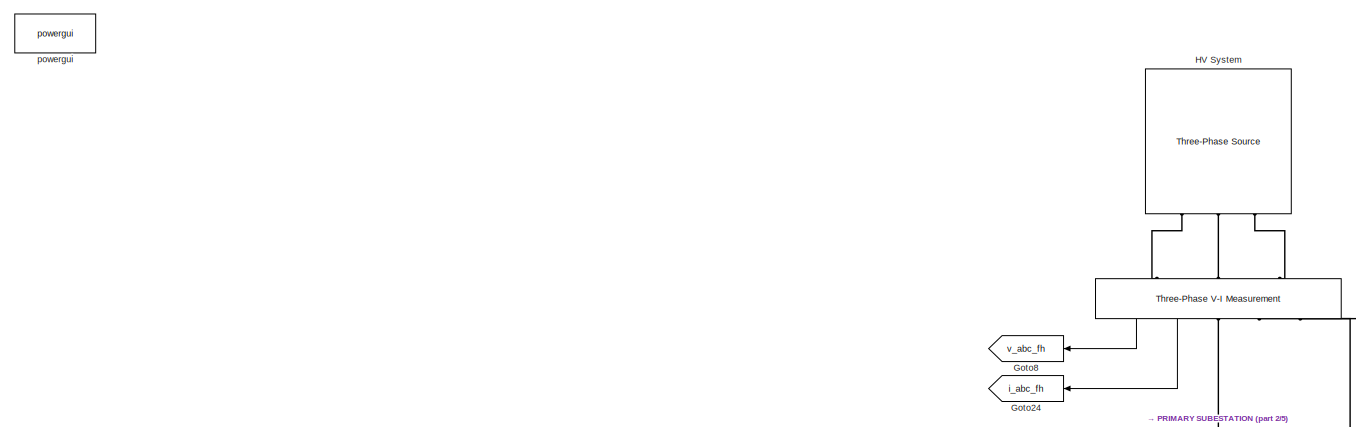
[diagram: root canvas - part 1/5, top center region]
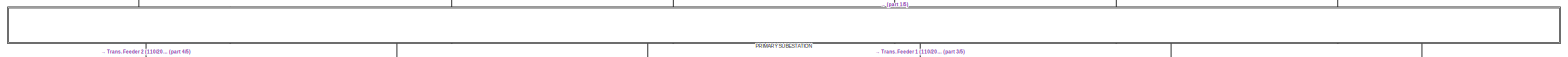
[diagram: root canvas - part 2/5, full width, middle band]
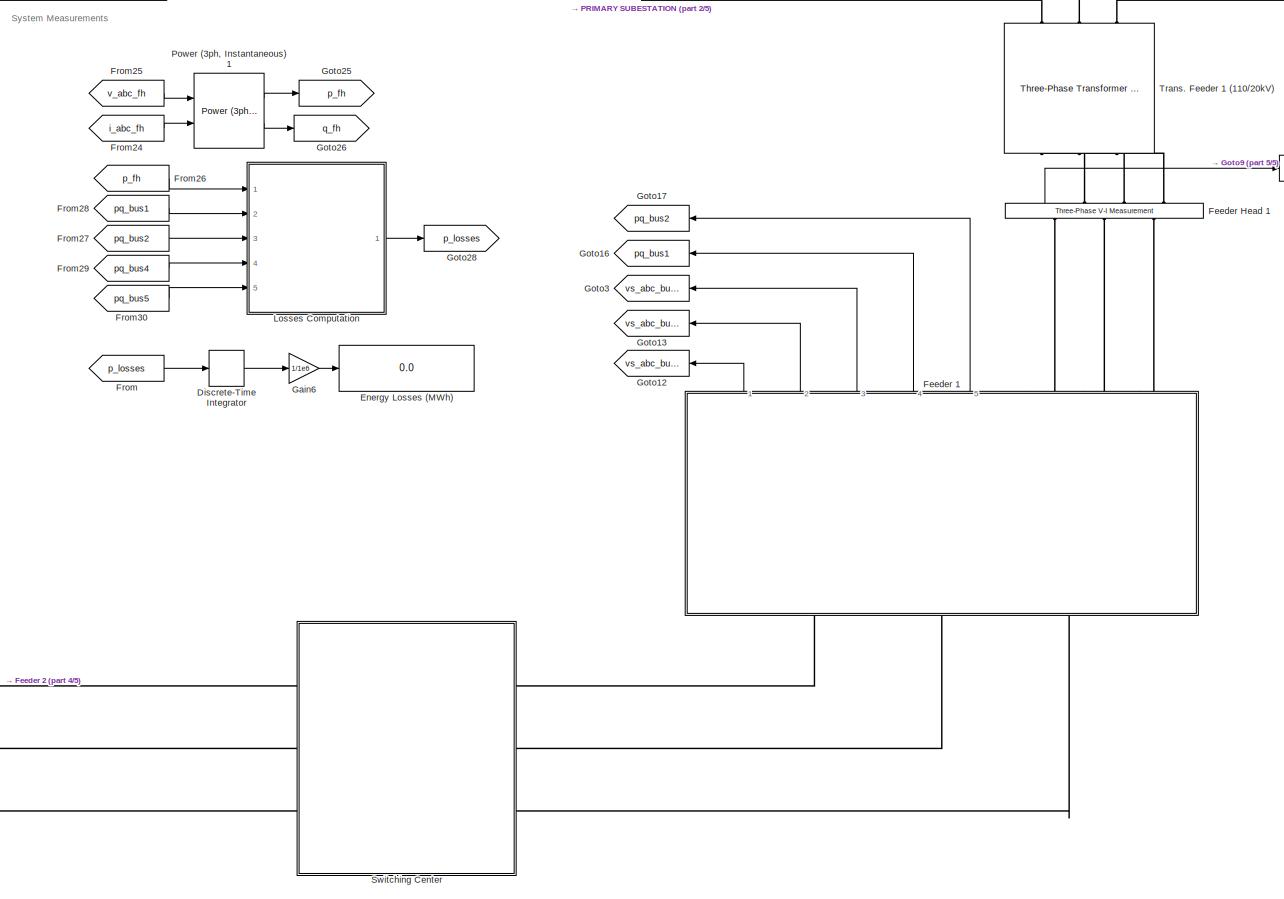
[diagram: root canvas - part 3/5, bottom center region]
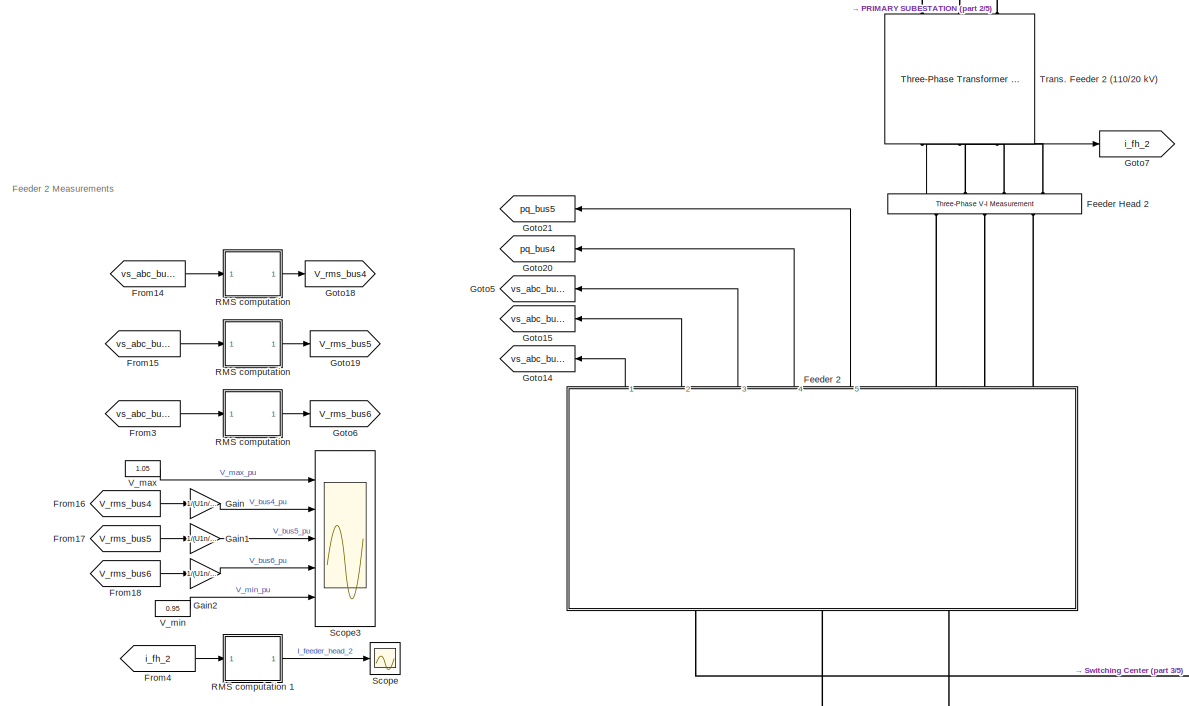
[diagram: root canvas - part 4/5, middle left region]
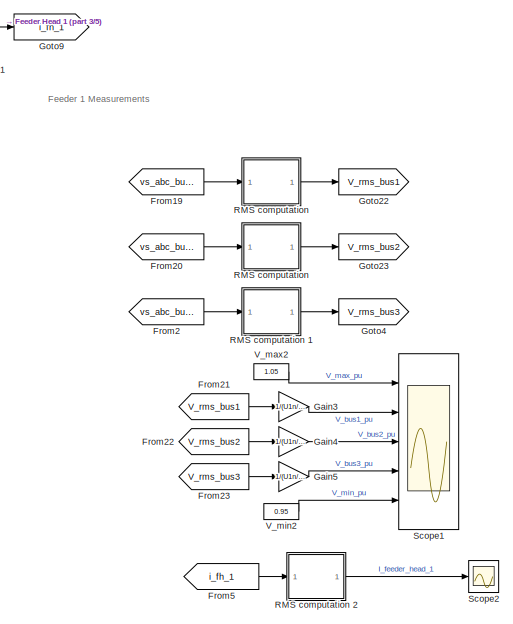
[diagram: root canvas - part 5/5, bottom right region]
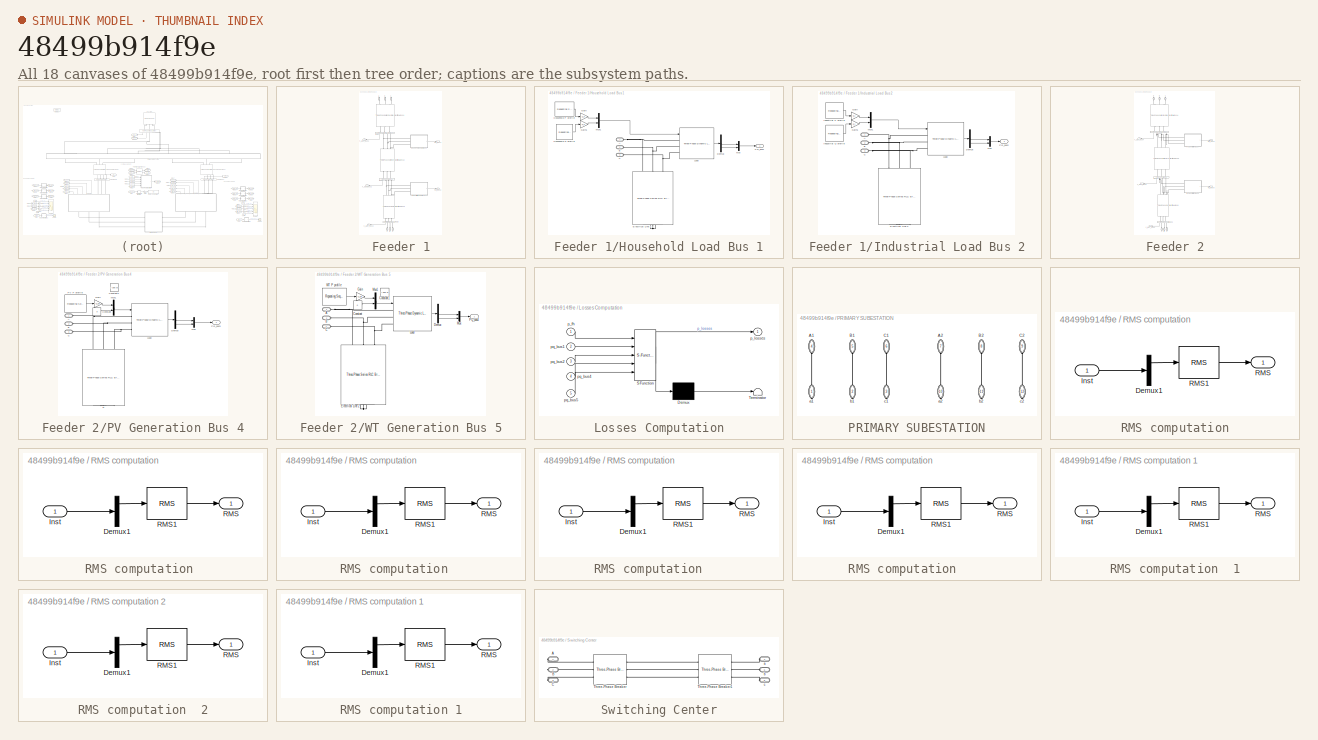
[diagram: thumbnail index - all 18 canvases of the model, root first then tree order]
MODEL slx_48499b914f9e
KIND model
CONFIG AbsTol = auto
CONFIG EnableMultiTasking = off
CONFIG FixedStep = Ts_Power
CONFIG InitFcn = %Simulation parameters\nTs_Power = 50e-6;\nTs_Control = 50e-6;\nTs_sec = 0.05;\n\n%MV Grid parameters\nU1n = 20e3;\nf = 50;\nomega = 2*pi*50;\n\n\n%LCL filter parameters\nL_t = 100e-6;\nC = 173e-6;\nL_s = 100e-6;\nR_d = 0.086;\nR_t = omega*L_t/100;\nR_s = omega*L_s/100;\n\n%Capacitance of the DC bus\nCdc = 5.88e-3;\nRdc = 0.00001;\n\n%Coupling transformers parameters\nU2n = 400;\nSn1 = 3e6;\n\n%Primary Subestation parameter...<+1463ch>
CONFIG MaxStep = auto
CONFIG MinStep = auto
CONFIG RelTol = 1e-3
CONFIG SampleTimeConstraint = Unconstrained
CONFIG SolverName = FixedStepDiscrete
CONFIG StartTime = 0.0
CONFIG StopTime = 24
BLOCK [Reference]    REF=spsThreePhaseVIMeasurementLib/Three-Phase
V-I Measurement
  NameLocation = right
  Ports = [0, 2, 0, 0, 0, 3, 3]
  SourceBlock = spsThreePhaseVIMeasurementLib/Three-Phase\nV-I Measurement
  SourceProductBaseCode = PS
  SourceType = Three-Phase VI Measurement
BLOCK [DiscreteIntegrator] Discrete-Time Integrator
  ICPrevOutput = DiscIntNeverNeededParam
  ICPrevScaledInput = DiscIntNeverNeededParam
  InitialConditionSetting = Auto
  Ports = [1, 1]
  SampleTime = Ts_Control
BLOCK [Display] Energy Losses (MWh)
  Decimation = 1
  Ports = [1]
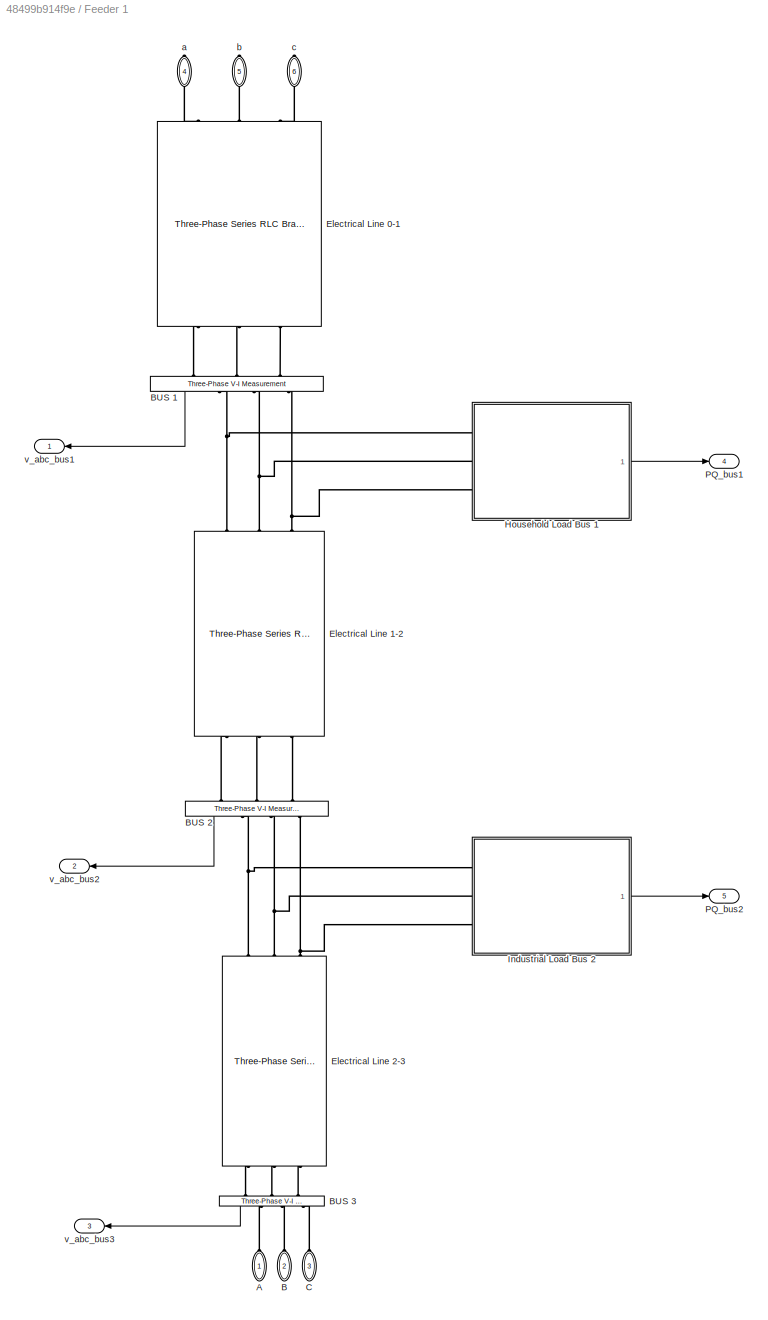
BLOCK [SubSystem] Feeder 1
  NameLocation = right
  Ports = [0, 5, 0, 0, 0, 3, 3]
  RequestExecContextInheritance = off
BLOCK [PMIOPort] Feeder 1/A
  NameLocation = right
  Side = Left
BLOCK [PMIOPort] Feeder 1/B
  NameLocation = right
  Port = 2
  Side = Left
BLOCK [Reference] Feeder 1/BUS 1  REF=spsThreePhaseVIMeasurementLib/Three-Phase
V-I Measurement
  NameLocation = right
  Ports = [0, 1, 0, 0, 0, 3, 3]
  SourceBlock = spsThreePhaseVIMeasurementLib/Three-Phase\nV-I Measurement
  SourceProductBaseCode = PS
  SourceType = Three-Phase VI Measurement
BLOCK [Reference] Feeder 1/BUS 2  REF=spsThreePhaseVIMeasurementLib/Three-Phase
V-I Measurement
  NameLocation = right
  Ports = [0, 1, 0, 0, 0, 3, 3]
  SourceBlock = spsThreePhaseVIMeasurementLib/Three-Phase\nV-I Measurement
  SourceProductBaseCode = PS
  SourceType = Three-Phase VI Measurement
BLOCK [Reference] Feeder 1/BUS 3  REF=spsThreePhaseVIMeasurementLib/Three-Phase
V-I Measurement
  NameLocation = right
  Ports = [0, 1, 0, 0, 0, 3, 3]
  SourceBlock = spsThreePhaseVIMeasurementLib/Three-Phase\nV-I Measurement
  SourceProductBaseCode = PS
  SourceType = Three-Phase VI Measurement
BLOCK [PMIOPort] Feeder 1/C
  NameLocation = right
  Port = 3
  Side = Left
BLOCK [Reference] Feeder 1/Electrical Line 0-1  REF=spsThreePhaseSeriesRLCBranchLib/Three-Phase
Series RLC Branch
  AttributesFormatString = \n
  NameLocation = right
  Ports = [0, 0, 0, 0, 0, 3, 3]
  SourceBlock = spsThreePhaseSeriesRLCBranchLib/Three-Phase\nSeries RLC Branch
  SourceProductBaseCode = PS
  SourceType = Three-Phase Series RLC Branch
BLOCK [Reference] Feeder 1/Electrical Line 1-2  REF=spsThreePhaseSeriesRLCBranchLib/Three-Phase
Series RLC Branch
  AttributesFormatString = \n
  NameLocation = right
  Ports = [0, 0, 0, 0, 0, 3, 3]
  SourceBlock = spsThreePhaseSeriesRLCBranchLib/Three-Phase\nSeries RLC Branch
  SourceProductBaseCode = PS
  SourceType = Three-Phase Series RLC Branch
BLOCK [Reference] Feeder 1/Electrical Line 2-3  REF=spsThreePhaseSeriesRLCBranchLib/Three-Phase
Series RLC Branch
  AttributesFormatString = \n
  NameLocation = right
  Ports = [0, 0, 0, 0, 0, 3, 3]
  SourceBlock = spsThreePhaseSeriesRLCBranchLib/Three-Phase\nSeries RLC Branch
  SourceProductBaseCode = PS
  SourceType = Three-Phase Series RLC Branch
BLOCK [SubSystem] Feeder 1/Household Load Bus 1
  Ports = [0, 1, 0, 0, 0, 3]
  RequestExecContextInheritance = off
BLOCK [PMIOPort] Feeder 1/Household Load Bus 1/A
  Side = Left
BLOCK [PMIOPort] Feeder 1/Household Load Bus 1/B
  Port = 2
  Side = Left
BLOCK [PMIOPort] Feeder 1/Household Load Bus 1/C
  Port = 3
  Side = Left
BLOCK [Demux] Feeder 1/Household Load Bus 1/Demux
  Outputs = 3
  Ports = [1, 3]
BLOCK [Reference] Feeder 1/Household Load Bus 1/Electrical Line 2  REF=spsThreePhaseSeriesRLCBranchLib/Three-Phase
Series RLC Branch
  AttributesFormatString = \n
  NameLocation = left
  Ports = [0, 0, 0, 0, 0, 3, 3]
  SourceBlock = spsThreePhaseSeriesRLCBranchLib/Three-Phase\nSeries RLC Branch
  SourceProductBaseCode = PS
  SourceType = Three-Phase Series RLC Branch
BLOCK [Gain] Feeder 1/Household Load Bus 1/Gain
  Gain = S_h
BLOCK [Gain] Feeder 1/Household Load Bus 1/Gain1
  Gain = S_h
BLOCK [Reference] Feeder 1/Household Load Bus 1/Household P profile  REF=simulink/Sources/Repeating
Sequence
Interpolated
  NameLocation = left
  Ports = [0, 1]
  SourceBlock = simulink/Sources/Repeating\nSequence\nInterpolated
  SourceProductBaseCode = SL
  SourceType = Repeating Sequence Interpolated
BLOCK [Reference] Feeder 1/Household Load Bus 1/Household Q profile  REF=simulink/Sources/Repeating
Sequence
Interpolated
  NameLocation = left
  Ports = [0, 1]
  SourceBlock = simulink/Sources/Repeating\nSequence\nInterpolated
  SourceProductBaseCode = SL
  SourceType = Repeating Sequence Interpolated
BLOCK [Reference] Feeder 1/Household Load Bus 1/Load  REF=spsThreePhaseDynamicLoadLib/Three-Phase
Dynamic Load
  Ports = [1, 1, 0, 0, 0, 3]
  SourceBlock = spsThreePhaseDynamicLoadLib/Three-Phase\nDynamic Load
  SourceProductBaseCode = PS
  SourceType = Three-Phase Dynamic Load
BLOCK [Mux] Feeder 1/Household Load Bus 1/Mux
  DisplayOption = bar
  Inputs = 2
  Ports = [2, 1]
BLOCK [Mux] Feeder 1/Household Load Bus 1/Mux1
  DisplayOption = bar
  Inputs = 2
  Ports = [2, 1]
BLOCK [Outport] Feeder 1/Household Load Bus 1/PQ_bus1
BLOCK [SubSystem] Feeder 1/Industrial Load Bus 2
  Ports = [0, 1, 0, 0, 0, 3]
  RequestExecContextInheritance = off
BLOCK [PMIOPort] Feeder 1/Industrial Load Bus 2/A
  Side = Left
BLOCK [PMIOPort] Feeder 1/Industrial Load Bus 2/B
  Port = 2
  Side = Left
BLOCK [PMIOPort] Feeder 1/Industrial Load Bus 2/C
  Port = 3
  Side = Left
BLOCK [Demux] Feeder 1/Industrial Load Bus 2/Demux
  Outputs = 3
  Ports = [1, 3]
BLOCK [Reference] Feeder 1/Industrial Load Bus 2/Electrical Line 2  REF=spsThreePhaseSeriesRLCBranchLib/Three-Phase
Series RLC Branch
  AttributesFormatString = \n
  NameLocation = left
  Ports = [0, 0, 0, 0, 0, 3, 3]
  SourceBlock = spsThreePhaseSeriesRLCBranchLib/Three-Phase\nSeries RLC Branch
  SourceProductBaseCode = PS
  SourceType = Three-Phase Series RLC Branch
BLOCK [Gain] Feeder 1/Industrial Load Bus 2/Gain
  Gain = S_i
BLOCK [Gain] Feeder 1/Industrial Load Bus 2/Gain1
  Gain = S_i
BLOCK [Reference] Feeder 1/Industrial Load Bus 2/Industrial P profile  REF=simulink/Sources/Repeating
Sequence
Interpolated
  NameLocation = left
  Ports = [0, 1]
  SourceBlock = simulink/Sources/Repeating\nSequence\nInterpolated
  SourceProductBaseCode = SL
  SourceType = Repeating Sequence Interpolated
BLOCK [Reference] Feeder 1/Industrial Load Bus 2/Industrial Q profile  REF=simulink/Sources/Repeating
Sequence
Interpolated
  NameLocation = left
  Ports = [0, 1]
  SourceBlock = simulink/Sources/Repeating\nSequence\nInterpolated
  SourceProductBaseCode = SL
  SourceType = Repeating Sequence Interpolated
BLOCK [Reference] Feeder 1/Industrial Load Bus 2/Load  REF=spsThreePhaseDynamicLoadLib/Three-Phase
Dynamic Load
  Ports = [1, 1, 0, 0, 0, 3]
  SourceBlock = spsThreePhaseDynamicLoadLib/Three-Phase\nDynamic Load
  SourceProductBaseCode = PS
  SourceType = Three-Phase Dynamic Load
BLOCK [Mux] Feeder 1/Industrial Load Bus 2/Mux
  DisplayOption = bar
  Inputs = 2
  Ports = [2, 1]
BLOCK [Mux] Feeder 1/Industrial Load Bus 2/Mux1
  DisplayOption = bar
  Inputs = 2
  Ports = [2, 1]
BLOCK [Outport] Feeder 1/Industrial Load Bus 2/PQ_bus2
BLOCK [Outport] Feeder 1/PQ_bus1
  Port = 4
BLOCK [Outport] Feeder 1/PQ_bus2
  Port = 5
BLOCK [PMIOPort] Feeder 1/a
  NameLocation = right
  Port = 4
  Side = Right
BLOCK [PMIOPort] Feeder 1/b
  NameLocation = right
  Port = 5
  Side = Right
BLOCK [PMIOPort] Feeder 1/c
  NameLocation = right
  Port = 6
  Side = Right
BLOCK [Outport] Feeder 1/v_abc_bus1
BLOCK [Outport] Feeder 1/v_abc_bus2
  Port = 2
BLOCK [Outport] Feeder 1/v_abc_bus3
  Port = 3
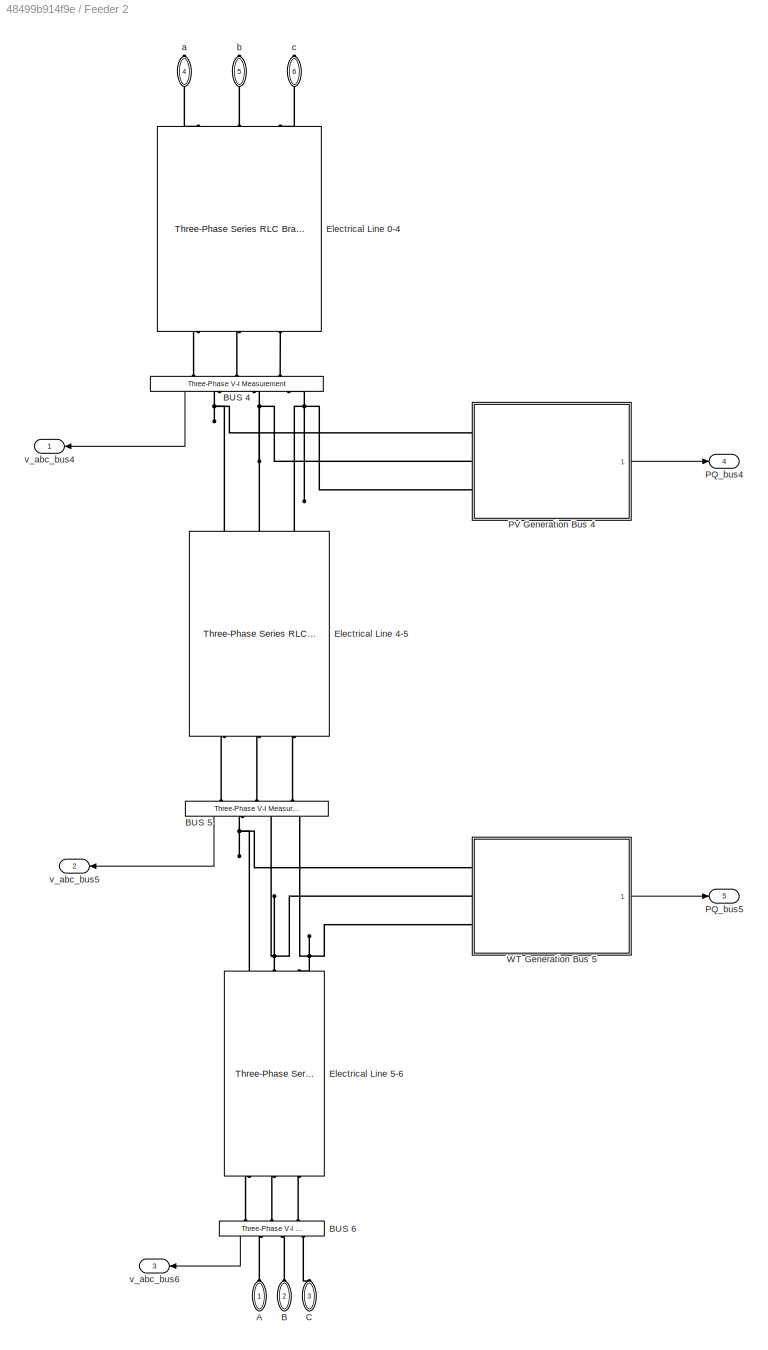
BLOCK [SubSystem] Feeder 2
  NameLocation = right
  Ports = [0, 5, 0, 0, 0, 3, 3]
  RequestExecContextInheritance = off
BLOCK [PMIOPort] Feeder 2/A
  NameLocation = right
  Side = Left
BLOCK [PMIOPort] Feeder 2/B
  NameLocation = right
  Port = 2
  Side = Left
BLOCK [Reference] Feeder 2/BUS 4  REF=spsThreePhaseVIMeasurementLib/Three-Phase
V-I Measurement
  NameLocation = right
  Ports = [0, 1, 0, 0, 0, 3, 3]
  SourceBlock = spsThreePhaseVIMeasurementLib/Three-Phase\nV-I Measurement
  SourceProductBaseCode = PS
  SourceType = Three-Phase VI Measurement
BLOCK [Reference] Feeder 2/BUS 5  REF=spsThreePhaseVIMeasurementLib/Three-Phase
V-I Measurement
  NameLocation = right
  Ports = [0, 1, 0, 0, 0, 3, 3]
  SourceBlock = spsThreePhaseVIMeasurementLib/Three-Phase\nV-I Measurement
  SourceProductBaseCode = PS
  SourceType = Three-Phase VI Measurement
BLOCK [Reference] Feeder 2/BUS 6  REF=spsThreePhaseVIMeasurementLib/Three-Phase
V-I Measurement
  NameLocation = right
  Ports = [0, 1, 0, 0, 0, 3, 3]
  SourceBlock = spsThreePhaseVIMeasurementLib/Three-Phase\nV-I Measurement
  SourceProductBaseCode = PS
  SourceType = Three-Phase VI Measurement
BLOCK [PMIOPort] Feeder 2/C
  NameLocation = right
  Port = 3
  Side = Left
BLOCK [Reference] Feeder 2/Electrical Line 0-4  REF=spsThreePhaseSeriesRLCBranchLib/Three-Phase
Series RLC Branch
  AttributesFormatString = \n
  NameLocation = right
  Ports = [0, 0, 0, 0, 0, 3, 3]
  SourceBlock = spsThreePhaseSeriesRLCBranchLib/Three-Phase\nSeries RLC Branch
  SourceProductBaseCode = PS
  SourceType = Three-Phase Series RLC Branch
BLOCK [Reference] Feeder 2/Electrical Line 4-5  REF=spsThreePhaseSeriesRLCBranchLib/Three-Phase
Series RLC Branch
  AttributesFormatString = \n
  NameLocation = right
  Ports = [0, 0, 0, 0, 0, 3, 3]
  SourceBlock = spsThreePhaseSeriesRLCBranchLib/Three-Phase\nSeries RLC Branch
  SourceProductBaseCode = PS
  SourceType = Three-Phase Series RLC Branch
BLOCK [Reference] Feeder 2/Electrical Line 5-6  REF=spsThreePhaseSeriesRLCBranchLib/Three-Phase
Series RLC Branch
  AttributesFormatString = \n
  NameLocation = right
  Ports = [0, 0, 0, 0, 0, 3, 3]
  SourceBlock = spsThreePhaseSeriesRLCBranchLib/Three-Phase\nSeries RLC Branch
  SourceProductBaseCode = PS
  SourceType = Three-Phase Series RLC Branch
BLOCK [Outport] Feeder 2/PQ_bus4
  Port = 4
BLOCK [Outport] Feeder 2/PQ_bus5
  Port = 5
BLOCK [SubSystem] Feeder 2/PV Generation Bus 4
  Ports = [0, 1, 0, 0, 0, 3]
  RequestExecContextInheritance = off
BLOCK [PMIOPort] Feeder 2/PV Generation Bus 4/A
  Side = Left
BLOCK [PMIOPort] Feeder 2/PV Generation Bus 4/B
  Port = 2
  Side = Left
BLOCK [PMIOPort] Feeder 2/PV Generation Bus 4/C
  Port = 3
  Side = Left
BLOCK [Constant] Feeder 2/PV Generation Bus 4/Constant
  Value = 0
BLOCK [Constant] Feeder 2/PV Generation Bus 4/Constant1
  Value = [-3e6 0]
BLOCK [Demux] Feeder 2/PV Generation Bus 4/Demux
  Outputs = 3
  Ports = [1, 3]
BLOCK [Gain] Feeder 2/PV Generation Bus 4/Gain
  Gain = -S_pv
BLOCK [Reference] Feeder 2/PV Generation Bus 4/Load  REF=spsThreePhaseDynamicLoadLib/Three-Phase
Dynamic Load
  Ports = [1, 1, 0, 0, 0, 3]
  SourceBlock = spsThreePhaseDynamicLoadLib/Three-Phase\nDynamic Load
  SourceProductBaseCode = PS
  SourceType = Three-Phase Dynamic Load
BLOCK [Mux] Feeder 2/PV Generation Bus 4/Mux
  DisplayOption = bar
  Inputs = 2
  Ports = [2, 1]
BLOCK [Mux] Feeder 2/PV Generation Bus 4/Mux1
  DisplayOption = bar
  Inputs = 2
  Ports = [2, 1]
BLOCK [Outport] Feeder 2/PV Generation Bus 4/PQ_bus3
BLOCK [Reference] Feeder 2/PV Generation Bus 4/PV P profile  REF=simulink/Sources/Repeating
Sequence
Interpolated
  NameLocation = left
  Ports = [0, 1]
  SourceBlock = simulink/Sources/Repeating\nSequence\nInterpolated
  SourceProductBaseCode = SL
  SourceType = Repeating Sequence Interpolated
BLOCK [Reference] Feeder 2/PV Generation Bus 4/R  REF=spsThreePhaseSeriesRLCBranchLib/Three-Phase
Series RLC Branch
  AttributesFormatString = \n
  NameLocation = left
  Ports = [0, 0, 0, 0, 0, 3, 3]
  SourceBlock = spsThreePhaseSeriesRLCBranchLib/Three-Phase\nSeries RLC Branch
  SourceProductBaseCode = PS
  SourceType = Three-Phase Series RLC Branch
BLOCK [SubSystem] Feeder 2/WT Generation Bus 5
  Ports = [0, 1, 0, 0, 0, 3]
  RequestExecContextInheritance = off
BLOCK [PMIOPort] Feeder 2/WT Generation Bus 5/A
  Side = Left
BLOCK [PMIOPort] Feeder 2/WT Generation Bus 5/B
  Port = 2
  Side = Left
BLOCK [PMIOPort] Feeder 2/WT Generation Bus 5/C
  Port = 3
  Side = Left
BLOCK [Constant] Feeder 2/WT Generation Bus 5/Constant
  Value = 0
BLOCK [Constant] Feeder 2/WT Generation Bus 5/Constant1
  Value = [-3e6 0]
BLOCK [Demux] Feeder 2/WT Generation Bus 5/Demux
  Outputs = 3
  Ports = [1, 3]
BLOCK [Reference] Feeder 2/WT Generation Bus 5/Electrical Line 2  REF=spsThreePhaseSeriesRLCBranchLib/Three-Phase
Series RLC Branch
  AttributesFormatString = \n
  NameLocation = left
  Ports = [0, 0, 0, 0, 0, 3, 3]
  SourceBlock = spsThreePhaseSeriesRLCBranchLib/Three-Phase\nSeries RLC Branch
  SourceProductBaseCode = PS
  SourceType = Three-Phase Series RLC Branch
BLOCK [Gain] Feeder 2/WT Generation Bus 5/Gain
  Gain = -S_wt
BLOCK [Reference] Feeder 2/WT Generation Bus 5/Load  REF=spsThreePhaseDynamicLoadLib/Three-Phase
Dynamic Load
  Ports = [1, 1, 0, 0, 0, 3]
  SourceBlock = spsThreePhaseDynamicLoadLib/Three-Phase\nDynamic Load
  SourceProductBaseCode = PS
  SourceType = Three-Phase Dynamic Load
BLOCK [Mux] Feeder 2/WT Generation Bus 5/Mux
  DisplayOption = bar
  Inputs = 2
  Ports = [2, 1]
BLOCK [Mux] Feeder 2/WT Generation Bus 5/Mux1
  DisplayOption = bar
  Inputs = 2
  Ports = [2, 1]
BLOCK [Outport] Feeder 2/WT Generation Bus 5/PQ_bus4
BLOCK [Reference] Feeder 2/WT Generation Bus 5/WT P profile  REF=simulink/Sources/Repeating
Sequence
Interpolated
  NameLocation = left
  Ports = [0, 1]
  SourceBlock = simulink/Sources/Repeating\nSequence\nInterpolated
  SourceProductBaseCode = SL
  SourceType = Repeating Sequence Interpolated
BLOCK [PMIOPort] Feeder 2/a
  NameLocation = right
  Port = 4
  Side = Right
BLOCK [PMIOPort] Feeder 2/b
  NameLocation = right
  Port = 5
  Side = Right
BLOCK [PMIOPort] Feeder 2/c
  NameLocation = right
  Port = 6
  Side = Right
BLOCK [Outport] Feeder 2/v_abc_bus4
BLOCK [Outport] Feeder 2/v_abc_bus5
  Port = 2
BLOCK [Outport] Feeder 2/v_abc_bus6
  Port = 3
BLOCK [Reference] Feeder Head 1  REF=spsThreePhaseVIMeasurementLib/Three-Phase
V-I Measurement
  NameLocation = right
  Ports = [0, 1, 0, 0, 0, 3, 3]
  SourceBlock = spsThreePhaseVIMeasurementLib/Three-Phase\nV-I Measurement
  SourceProductBaseCode = PS
  SourceType = Three-Phase VI Measurement
BLOCK [Reference] Feeder Head 2  REF=spsThreePhaseVIMeasurementLib/Three-Phase
V-I Measurement
  NameLocation = right
  Ports = [0, 1, 0, 0, 0, 3, 3]
  SourceBlock = spsThreePhaseVIMeasurementLib/Three-Phase\nV-I Measurement
  SourceProductBaseCode = PS
  SourceType = Three-Phase VI Measurement
BLOCK [From] From
  GotoTag = p_losses
BLOCK [From] From14
  GotoTag = vs_abc_bus4
BLOCK [From] From15
  GotoTag = vs_abc_bus5
BLOCK [From] From16
  GotoTag = V_rms_bus4
BLOCK [From] From17
  GotoTag = V_rms_bus5
BLOCK [From] From18
  GotoTag = V_rms_bus6
BLOCK [From] From19
  GotoTag = vs_abc_bus1
BLOCK [From] From2
  GotoTag = vs_abc_bus3
BLOCK [From] From20
  GotoTag = vs_abc_bus2
BLOCK [From] From21
  GotoTag = V_rms_bus1
BLOCK [From] From22
  GotoTag = V_rms_bus2
BLOCK [From] From23
  GotoTag = V_rms_bus3
BLOCK [From] From24
  GotoTag = i_abc_fh
BLOCK [From] From25
  GotoTag = v_abc_fh
BLOCK [From] From26
  GotoTag = p_fh
BLOCK [From] From27
  GotoTag = pq_bus2
BLOCK [From] From28
  GotoTag = pq_bus1
BLOCK [From] From29
  GotoTag = pq_bus4
BLOCK [From] From3
  GotoTag = vs_abc_bus6
BLOCK [From] From30
  GotoTag = pq_bus5
BLOCK [From] From4
  GotoTag = i_fh_2
BLOCK [From] From5
  GotoTag = i_fh_1
BLOCK [Gain] Gain
  Gain = 1/(U1n/sqrt(3))
BLOCK [Gain] Gain1
  Gain = 1/(U1n/sqrt(3))
BLOCK [Gain] Gain2
  Gain = 1/(U1n/sqrt(3))
BLOCK [Gain] Gain3
  Gain = 1/(U1n/sqrt(3))
BLOCK [Gain] Gain4
  Gain = 1/(U1n/sqrt(3))
BLOCK [Gain] Gain5
  Gain = 1/(U1n/sqrt(3))
BLOCK [Gain] Gain6
  Gain = 1/1e6
BLOCK [Goto] Goto12
  GotoTag = vs_abc_bus1
BLOCK [Goto] Goto13
  GotoTag = vs_abc_bus2
BLOCK [Goto] Goto14
  GotoTag = vs_abc_bus4
BLOCK [Goto] Goto15
  GotoTag = vs_abc_bus5
BLOCK [Goto] Goto16
  GotoTag = pq_bus1
BLOCK [Goto] Goto17
  GotoTag = pq_bus2
BLOCK [Goto] Goto18
  GotoTag = V_rms_bus4
BLOCK [Goto] Goto19
  GotoTag = V_rms_bus5
BLOCK [Goto] Goto20
  GotoTag = pq_bus4
BLOCK [Goto] Goto21
  GotoTag = pq_bus5
BLOCK [Goto] Goto22
  GotoTag = V_rms_bus1
BLOCK [Goto] Goto23
  GotoTag = V_rms_bus2
BLOCK [Goto] Goto24
  GotoTag = i_abc_fh
BLOCK [Goto] Goto25
  GotoTag = p_fh
BLOCK [Goto] Goto26
  GotoTag = q_fh
BLOCK [Goto] Goto28
  GotoTag = p_losses
BLOCK [Goto] Goto3
  GotoTag = vs_abc_bus3
BLOCK [Goto] Goto4
  GotoTag = V_rms_bus3
BLOCK [Goto] Goto5
  GotoTag = vs_abc_bus6
BLOCK [Goto] Goto6
  GotoTag = V_rms_bus6
BLOCK [Goto] Goto7
  GotoTag = i_fh_2
BLOCK [Goto] Goto8
  GotoTag = v_abc_fh
BLOCK [Goto] Goto9
  GotoTag = i_fh_1
BLOCK [Reference] HV System  REF=spsThreePhaseSourceLib/Three-Phase Source
  NameLocation = right
  Ports = [0, 0, 0, 0, 0, 0, 3]
  SourceBlock = spsThreePhaseSourceLib/Three-Phase Source
  SourceProductBaseCode = PS
  SourceType = Three-Phase Source
BLOCK [SubSystem] Losses Computation
  ErrorFcn = Stateflow.Translate.translate
  PermitHierarchicalResolution = ExplicitOnly
  Ports = [5, 1]
  RequestExecContextInheritance = off
  SFBlockType = MATLAB Function
  TreatAsAtomicUnit = on
BLOCK [Demux] Losses Computation/ Demux 
  Outputs = 1
  Ports = [1, 1]
BLOCK [S-Function] Losses Computation/ SFunction 
  EnableBusSupport = on
  FunctionName = sf_sfun
  PortCounts = [5 2]
  Ports = [5, 2]
  SFcnIsStateOwnerBlock = off
  SFunctionDeploymentMode = off
  Tag = Stateflow S-Function 16
BLOCK [Terminator] Losses Computation/ Terminator 
BLOCK [Inport] Losses Computation/p_fh
BLOCK [Outport] Losses Computation/p_losses
BLOCK [Inport] Losses Computation/pq_bus1
  Port = 2
BLOCK [Inport] Losses Computation/pq_bus2
  Port = 3
BLOCK [Inport] Losses Computation/pq_bus4
  Port = 4
BLOCK [Inport] Losses Computation/pq_bus5
  Port = 5
BLOCK [SubSystem] PRIMARY SUBESTATION
  NameLocation = top
  Ports = [0, 0, 0, 0, 0, 6, 6]
  RequestExecContextInheritance = off
BLOCK [PMIOPort] PRIMARY SUBESTATION/A1
  NameLocation = left
  Port = 4
  Side = Left
BLOCK [PMIOPort] PRIMARY SUBESTATION/A2
  NameLocation = left
  Port = 7
  Side = Left
BLOCK [PMIOPort] PRIMARY SUBESTATION/B1
  NameLocation = left
  Port = 5
  Side = Left
BLOCK [PMIOPort] PRIMARY SUBESTATION/B2
  NameLocation = left
  Port = 8
  Side = Left
BLOCK [PMIOPort] PRIMARY SUBESTATION/C1
  NameLocation = left
  Port = 6
  Side = Left
BLOCK [PMIOPort] PRIMARY SUBESTATION/C2
  NameLocation = left
  Port = 9
  Side = Left
BLOCK [PMIOPort] PRIMARY SUBESTATION/a1
  NameLocation = left
  Side = Right
BLOCK [PMIOPort] PRIMARY SUBESTATION/a2
  NameLocation = left
  Port = 10
  Side = Right
BLOCK [PMIOPort] PRIMARY SUBESTATION/b1
  NameLocation = left
  Port = 2
  Side = Right
BLOCK [PMIOPort] PRIMARY SUBESTATION/b2
  NameLocation = left
  Port = 11
  Side = Right
BLOCK [PMIOPort] PRIMARY SUBESTATION/c1
  NameLocation = left
  Port = 3
  Side = Right
BLOCK [PMIOPort] PRIMARY SUBESTATION/c2
  NameLocation = left
  Port = 12
  Side = Right
BLOCK [Reference] Power (3ph, Instantaneous)1  REF=spsPower3phInstantaneousLib/Power
(3ph, Instantaneous)
  Ports = [2, 2]
  SourceBlock = spsPower3phInstantaneousLib/Power\n(3ph, Instantaneous)
  SourceProductBaseCode = PS
  SourceType = Power (3ph, Instantaneous)
BLOCK [SubSystem] RMS computation
  Ports = [1, 1]
  RequestExecContextInheritance = off
BLOCK [SubSystem] RMS computation 
  Ports = [1, 1]
  RequestExecContextInheritance = off
BLOCK [SubSystem] RMS computation  
  Ports = [1, 1]
  RequestExecContextInheritance = off
BLOCK [SubSystem] RMS computation   
  Ports = [1, 1]
  RequestExecContextInheritance = off
BLOCK [SubSystem] RMS computation    
  Ports = [1, 1]
  RequestExecContextInheritance = off
BLOCK [Demux] RMS computation    /Demux1
  Outputs = 3
  Ports = [1, 3]
BLOCK [Inport] RMS computation    /Inst
BLOCK [Outport] RMS computation    /RMS
BLOCK [Reference] RMS computation    /RMS1  REF=spsRMSLib/RMS
  Ports = [1, 1]
  SourceBlock = spsRMSLib/RMS
  SourceProductBaseCode = PS
  SourceType = RMS
BLOCK [Demux] RMS computation   /Demux1
  Outputs = 3
  Ports = [1, 3]
BLOCK [Inport] RMS computation   /Inst
BLOCK [Outport] RMS computation   /RMS
BLOCK [Reference] RMS computation   /RMS1  REF=spsRMSLib/RMS
  Ports = [1, 1]
  SourceBlock = spsRMSLib/RMS
  SourceProductBaseCode = PS
  SourceType = RMS
BLOCK [Demux] RMS computation  /Demux1
  Outputs = 3
  Ports = [1, 3]
BLOCK [Inport] RMS computation  /Inst
BLOCK [Outport] RMS computation  /RMS
BLOCK [Reference] RMS computation  /RMS1  REF=spsRMSLib/RMS
  Ports = [1, 1]
  SourceBlock = spsRMSLib/RMS
  SourceProductBaseCode = PS
  SourceType = RMS
BLOCK [SubSystem] RMS computation  1
  Ports = [1, 1]
  RequestExecContextInheritance = off
BLOCK [Demux] RMS computation  1/Demux1
  Outputs = 3
  Ports = [1, 3]
BLOCK [Inport] RMS computation  1/Inst
BLOCK [Outport] RMS computation  1/RMS
BLOCK [Reference] RMS computation  1/RMS1  REF=spsRMSLib/RMS
  Ports = [1, 1]
  SourceBlock = spsRMSLib/RMS
  SourceProductBaseCode = PS
  SourceType = RMS
BLOCK [SubSystem] RMS computation  2
  Ports = [1, 1]
  RequestExecContextInheritance = off
BLOCK [Demux] RMS computation  2/Demux1
  Outputs = 3
  Ports = [1, 3]
BLOCK [Inport] RMS computation  2/Inst
BLOCK [Outport] RMS computation  2/RMS
BLOCK [Reference] RMS computation  2/RMS1  REF=spsRMSLib/RMS
  Ports = [1, 1]
  SourceBlock = spsRMSLib/RMS
  SourceProductBaseCode = PS
  SourceType = RMS
BLOCK [Demux] RMS computation /Demux1
  Outputs = 3
  Ports = [1, 3]
BLOCK [Inport] RMS computation /Inst
BLOCK [Outport] RMS computation /RMS
BLOCK [Reference] RMS computation /RMS1  REF=spsRMSLib/RMS
  Ports = [1, 1]
  SourceBlock = spsRMSLib/RMS
  SourceProductBaseCode = PS
  SourceType = RMS
BLOCK [SubSystem] RMS computation 1
  Ports = [1, 1]
  RequestExecContextInheritance = off
BLOCK [Demux] RMS computation 1/Demux1
  Outputs = 3
  Ports = [1, 3]
BLOCK [Inport] RMS computation 1/Inst
BLOCK [Outport] RMS computation 1/RMS
BLOCK [Reference] RMS computation 1/RMS1  REF=spsRMSLib/RMS
  Ports = [1, 1]
  SourceBlock = spsRMSLib/RMS
  SourceProductBaseCode = PS
  SourceType = RMS
BLOCK [Demux] RMS computation/Demux1
  Outputs = 3
  Ports = [1, 3]
BLOCK [Inport] RMS computation/Inst
BLOCK [Outport] RMS computation/RMS
BLOCK [Reference] RMS computation/RMS1  REF=spsRMSLib/RMS
  Ports = [1, 1]
  SourceBlock = spsRMSLib/RMS
  SourceProductBaseCode = PS
  SourceType = RMS
BLOCK [Scope] Scope
  Floating = off
  NumInputPorts = 1
  Ports = [1]
  ScopeSpecificationString = Simulink.scopes.TimeScopeBlockCfg('CurrentConfiguration', extmgr.ConfigurationSet(extmgr.Configuration('Core','General UI',true),extmgr.Configuration('Core','Source UI',true),extmgr.Configuration('Sources','WiredSimulink',true,'DataLoggingVariableName','ScopeData2'),extmgr.Configuration('Visuals','Time Domain',true,'SerializedDisplays',{struct('MinYLimReal','76.04836','MaxYLimReal','371.86067','YL...<+1558ch>
BLOCK [Scope] Scope1
  Floating = off
  NumInputPorts = 5
  Ports = [5]
  ScopeSpecificationString = Simulink.scopes.TimeScopeBlockCfg('CurrentConfiguration', extmgr.ConfigurationSet(extmgr.Configuration('Core','General UI',true),extmgr.Configuration('Core','Source UI',true),extmgr.Configuration('Sources','WiredSimulink',true,'DataLoggingVariableName','ScopeData1'),extmgr.Configuration('Visuals','Time Domain',true,'SerializedDisplays',{struct('MinYLimReal','0.92','MaxYLimReal','1.06','YLabelReal'...<+2054ch>
BLOCK [Scope] Scope2
  Floating = off
  NumInputPorts = 1
  Ports = [1]
  ScopeSpecificationString = Simulink.scopes.TimeScopeBlockCfg('CurrentConfiguration', extmgr.ConfigurationSet(extmgr.Configuration('Core','General UI',true),extmgr.Configuration('Core','Source UI',true),extmgr.Configuration('Sources','WiredSimulink',true,'DataLoggingVariableName','ScopeData3'),extmgr.Configuration('Visuals','Time Domain',true,'SerializedDisplays',{struct('MinYLimReal','25.88686','MaxYLimReal','253.7238','YLa...<+1581ch>
BLOCK [Scope] Scope3
  Floating = off
  NumInputPorts = 5
  Ports = [5]
  ScopeSpecificationString = Simulink.scopes.TimeScopeBlockCfg('CurrentConfiguration', extmgr.ConfigurationSet(extmgr.Configuration('Core','General UI',true,'FigureColor',[0 0 0]),extmgr.Configuration('Core','Source UI',true),extmgr.Configuration('Sources','WiredSimulink',true,'DataLoggingVariableName','ScopeData1'),extmgr.Configuration('Visuals','Time Domain',true,'SerializedDisplays',{struct('MinYLimReal','0.94','MaxYLimRea...<+2076ch>
BLOCK [SubSystem] Switching Center
  Ports = [0, 0, 0, 0, 0, 3, 3]
  RequestExecContextInheritance = off
BLOCK [PMIOPort] Switching Center/A
  Side = Right
BLOCK [PMIOPort] Switching Center/B
  Port = 2
  Side = Right
BLOCK [PMIOPort] Switching Center/C
  Port = 3
  Side = Right
BLOCK [Reference] Switching Center/Three-Phase Breaker  REF=spsThreePhaseBreakerLib/Three-Phase Breaker
  Ports = [0, 0, 0, 0, 0, 3, 3]
  SourceBlock = spsThreePhaseBreakerLib/Three-Phase Breaker
  SourceProductBaseCode = PS
  SourceType = Three-Phase Breaker
BLOCK [Reference] Switching Center/Three-Phase Breaker1  REF=spsThreePhaseBreakerLib/Three-Phase Breaker
  Ports = [0, 0, 0, 0, 0, 3, 3]
  SourceBlock = spsThreePhaseBreakerLib/Three-Phase Breaker
  SourceProductBaseCode = PS
  SourceType = Three-Phase Breaker
BLOCK [PMIOPort] Switching Center/a
  Port = 4
  Side = Left
BLOCK [PMIOPort] Switching Center/b
  Port = 5
  Side = Left
BLOCK [PMIOPort] Switching Center/c
  Port = 6
  Side = Left
BLOCK [Reference] Trans. Feeder 1 (110//20kV)  REF=spsThreePhaseTransformerTwoWindingsLib/Three-Phase
Transformer
(Two Windings)
  NameLocation = right
  Ports = [0, 0, 0, 0, 0, 3, 3]
  SourceBlock = spsThreePhaseTransformerTwoWindingsLib/Three-Phase\nTransformer\n(Two Windings)
  SourceProductBaseCode = PS
  SourceType = Three-Phase Transformer (Two Windings)
BLOCK [Reference] Trans. Feeder 2 (110//20 kV)  REF=spsThreePhaseTransformerTwoWindingsLib/Three-Phase
Transformer
(Two Windings)
  NameLocation = left
  Ports = [0, 0, 0, 0, 0, 3, 3]
  SourceBlock = spsThreePhaseTransformerTwoWindingsLib/Three-Phase\nTransformer\n(Two Windings)
  SourceProductBaseCode = PS
  SourceType = Three-Phase Transformer (Two Windings)
BLOCK [Constant] V_max
  Value = 1.05
BLOCK [Constant] V_max2
  Value = 1.05
BLOCK [Constant] V_min
  Value = 0.95
BLOCK [Constant] V_min2
  Value = 0.95
BLOCK [Reference] powergui  REF=spspowerguiLib/powergui
  Ports = []
  Priority = 1
  SourceBlock = spspowerguiLib/powergui
  SourceProductBaseCode = PS
  SourceType = PSB option menu block
ANNOTATION (root): Feeder 1 Measurements
ANNOTATION (root): Feeder 2 Measurements
ANNOTATION (root): System Measurements
LINE  :1 -> Goto8:1
LINE  :2 -> Goto24:1
LINE Discrete-Time Integrator:1 -> Gain6:1
LINE Feeder 1/BUS 1:1 -> Feeder 1/v_abc_bus1:1
LINE Feeder 1/BUS 2:1 -> Feeder 1/v_abc_bus2:1
LINE Feeder 1/BUS 3:1 -> Feeder 1/v_abc_bus3:1
LINE Feeder 1/Household Load Bus 1/Demux:2 -> Feeder 1/Household Load Bus 1/Mux:1
LINE Feeder 1/Household Load Bus 1/Demux:3 -> Feeder 1/Household Load Bus 1/Mux:2
LINE Feeder 1/Household Load Bus 1/Gain1:1 -> Feeder 1/Household Load Bus 1/Mux1:2
LINE Feeder 1/Household Load Bus 1/Gain:1 -> Feeder 1/Household Load Bus 1/Mux1:1
LINE Feeder 1/Household Load Bus 1/Household P profile:1 -> Feeder 1/Household Load Bus 1/Gain:1
LINE Feeder 1/Household Load Bus 1/Household Q profile:1 -> Feeder 1/Household Load Bus 1/Gain1:1
LINE Feeder 1/Household Load Bus 1/Load:1 -> Feeder 1/Household Load Bus 1/Demux:1
LINE Feeder 1/Household Load Bus 1/Mux1:1 -> Feeder 1/Household Load Bus 1/Load:1
LINE Feeder 1/Household Load Bus 1/Mux:1 -> Feeder 1/Household Load Bus 1/PQ_bus1:1
LINE Feeder 1/Household Load Bus 1:1 -> Feeder 1/PQ_bus1:1
LINE Feeder 1/Industrial Load Bus 2/Demux:2 -> Feeder 1/Industrial Load Bus 2/Mux:1
LINE Feeder 1/Industrial Load Bus 2/Demux:3 -> Feeder 1/Industrial Load Bus 2/Mux:2
LINE Feeder 1/Industrial Load Bus 2/Gain1:1 -> Feeder 1/Industrial Load Bus 2/Mux1:2
LINE Feeder 1/Industrial Load Bus 2/Gain:1 -> Feeder 1/Industrial Load Bus 2/Mux1:1
LINE Feeder 1/Industrial Load Bus 2/Industrial P profile:1 -> Feeder 1/Industrial Load Bus 2/Gain:1
LINE Feeder 1/Industrial Load Bus 2/Industrial Q profile:1 -> Feeder 1/Industrial Load Bus 2/Gain1:1
LINE Feeder 1/Industrial Load Bus 2/Load:1 -> Feeder 1/Industrial Load Bus 2/Demux:1
LINE Feeder 1/Industrial Load Bus 2/Mux1:1 -> Feeder 1/Industrial Load Bus 2/Load:1
LINE Feeder 1/Industrial Load Bus 2/Mux:1 -> Feeder 1/Industrial Load Bus 2/PQ_bus2:1
LINE Feeder 1/Industrial Load Bus 2:1 -> Feeder 1/PQ_bus2:1
LINE Feeder 1:1 -> Goto12:1
LINE Feeder 1:2 -> Goto13:1
LINE Feeder 1:3 -> Goto3:1
LINE Feeder 1:4 -> Goto16:1
LINE Feeder 1:5 -> Goto17:1
LINE Feeder 2/BUS 4:1 -> Feeder 2/v_abc_bus4:1
LINE Feeder 2/BUS 5:1 -> Feeder 2/v_abc_bus5:1
LINE Feeder 2/BUS 6:1 -> Feeder 2/v_abc_bus6:1
LINE Feeder 2/PV Generation Bus 4/Constant:1 -> Feeder 2/PV Generation Bus 4/Mux1:2
LINE Feeder 2/PV Generation Bus 4/Demux:2 -> Feeder 2/PV Generation Bus 4/Mux:1
LINE Feeder 2/PV Generation Bus 4/Demux:3 -> Feeder 2/PV Generation Bus 4/Mux:2
LINE Feeder 2/PV Generation Bus 4/Gain:1 -> Feeder 2/PV Generation Bus 4/Mux1:1
LINE Feeder 2/PV Generation Bus 4/Load:1 -> Feeder 2/PV Generation Bus 4/Demux:1
LINE Feeder 2/PV Generation Bus 4/Mux1:1 -> Feeder 2/PV Generation Bus 4/Load:1
LINE Feeder 2/PV Generation Bus 4/Mux:1 -> Feeder 2/PV Generation Bus 4/PQ_bus3:1
LINE Feeder 2/PV Generation Bus 4/PV P profile:1 -> Feeder 2/PV Generation Bus 4/Gain:1
LINE Feeder 2/PV Generation Bus 4:1 -> Feeder 2/PQ_bus4:1
LINE Feeder 2/WT Generation Bus 5/Constant:1 -> Feeder 2/WT Generation Bus 5/Mux1:2
LINE Feeder 2/WT Generation Bus 5/Demux:2 -> Feeder 2/WT Generation Bus 5/Mux:1
LINE Feeder 2/WT Generation Bus 5/Demux:3 -> Feeder 2/WT Generation Bus 5/Mux:2
LINE Feeder 2/WT Generation Bus 5/Gain:1 -> Feeder 2/WT Generation Bus 5/Mux1:1
LINE Feeder 2/WT Generation Bus 5/Load:1 -> Feeder 2/WT Generation Bus 5/Demux:1
LINE Feeder 2/WT Generation Bus 5/Mux1:1 -> Feeder 2/WT Generation Bus 5/Load:1
LINE Feeder 2/WT Generation Bus 5/Mux:1 -> Feeder 2/WT Generation Bus 5/PQ_bus4:1
LINE Feeder 2/WT Generation Bus 5/WT P profile:1 -> Feeder 2/WT Generation Bus 5/Gain:1
LINE Feeder 2/WT Generation Bus 5:1 -> Feeder 2/PQ_bus5:1
LINE Feeder 2:1 -> Goto14:1
LINE Feeder 2:2 -> Goto15:1
LINE Feeder 2:3 -> Goto5:1
LINE Feeder 2:4 -> Goto20:1
LINE Feeder 2:5 -> Goto21:1
LINE Feeder Head 1:1 -> Goto9:1
LINE Feeder Head 2:1 -> Goto7:1
LINE From14:1 -> RMS computation  :1
LINE From15:1 -> RMS computation   :1
LINE From16:1 -> Gain:1
LINE From17:1 -> Gain1:1
LINE From18:1 -> Gain2:1
LINE From19:1 -> RMS computation:1
LINE From20:1 -> RMS computation :1
LINE From21:1 -> Gain3:1
LINE From22:1 -> Gain4:1
LINE From23:1 -> Gain5:1
LINE From24:1 -> Power (3ph, Instantaneous)1:2
LINE From25:1 -> Power (3ph, Instantaneous)1:1
LINE From26:1 -> Losses Computation:1
LINE From27:1 -> Losses Computation:3
LINE From28:1 -> Losses Computation:2
LINE From29:1 -> Losses Computation:4
LINE From2:1 -> RMS computation 1:1
LINE From30:1 -> Losses Computation:5
LINE From3:1 -> RMS computation    :1
LINE From4:1 -> RMS computation  1:1
LINE From5:1 -> RMS computation  2:1
LINE From:1 -> Discrete-Time Integrator:1
LINE Gain1:1 -> Scope3:3
LINE Gain2:1 -> Scope3:4
LINE Gain3:1 -> Scope1:2
LINE Gain4:1 -> Scope1:3
LINE Gain5:1 -> Scope1:4
LINE Gain6:1 -> Energy Losses (MWh):1
LINE Gain:1 -> Scope3:2
LINE Losses Computation:1 -> Goto28:1
LINE Power (3ph, Instantaneous)1:1 -> Goto25:1
LINE Power (3ph, Instantaneous)1:2 -> Goto26:1
LINE RMS computation    /Demux1:1 -> RMS computation    /RMS1:1
LINE RMS computation    /Inst:1 -> RMS computation    /Demux1:1
LINE RMS computation    /RMS1:1 -> RMS computation    /RMS:1
LINE RMS computation    :1 -> Goto6:1
LINE RMS computation   /Demux1:1 -> RMS computation   /RMS1:1
LINE RMS computation   /Inst:1 -> RMS computation   /Demux1:1
LINE RMS computation   /RMS1:1 -> RMS computation   /RMS:1
LINE RMS computation   :1 -> Goto19:1
LINE RMS computation  /Demux1:1 -> RMS computation  /RMS1:1
LINE RMS computation  /Inst:1 -> RMS computation  /Demux1:1
LINE RMS computation  /RMS1:1 -> RMS computation  /RMS:1
LINE RMS computation  1/Demux1:1 -> RMS computation  1/RMS1:1
LINE RMS computation  1/Inst:1 -> RMS computation  1/Demux1:1
LINE RMS computation  1/RMS1:1 -> RMS computation  1/RMS:1
LINE RMS computation  1:1 -> Scope:1
LINE RMS computation  2/Demux1:1 -> RMS computation  2/RMS1:1
LINE RMS computation  2/Inst:1 -> RMS computation  2/Demux1:1
LINE RMS computation  2/RMS1:1 -> RMS computation  2/RMS:1
LINE RMS computation  2:1 -> Scope2:1
LINE RMS computation  :1 -> Goto18:1
LINE RMS computation /Demux1:1 -> RMS computation /RMS1:1
LINE RMS computation /Inst:1 -> RMS computation /Demux1:1
LINE RMS computation /RMS1:1 -> RMS computation /RMS:1
LINE RMS computation 1/Demux1:1 -> RMS computation 1/RMS1:1
LINE RMS computation 1/Inst:1 -> RMS computation 1/Demux1:1
LINE RMS computation 1/RMS1:1 -> RMS computation 1/RMS:1
LINE RMS computation 1:1 -> Goto4:1
LINE RMS computation :1 -> Goto23:1
LINE RMS computation/Demux1:1 -> RMS computation/RMS1:1
LINE RMS computation/Inst:1 -> RMS computation/Demux1:1
LINE RMS computation/RMS1:1 -> RMS computation/RMS:1
LINE RMS computation:1 -> Goto22:1
LINE V_max2:1 -> Scope1:1
LINE V_max:1 -> Scope3:1
LINE V_min2:1 -> Scope1:5
LINE V_min:1 -> Scope3:5
PLINE  :LConn1 -- HV System:RConn1
PLINE  :LConn2 -- HV System:RConn2
PLINE  :LConn3 -- HV System:RConn3
PNET net1:  :RConn1 -- PRIMARY SUBESTATION:LConn1 -- PRIMARY SUBESTATION:LConn4
PNET net2:  :RConn2 -- PRIMARY SUBESTATION:LConn2 -- PRIMARY SUBESTATION:LConn5
PNET net3:  :RConn3 -- PRIMARY SUBESTATION:LConn3 -- PRIMARY SUBESTATION:LConn6
PLINE Feeder 1/A:RConn1 -- Feeder 1/BUS 3:RConn1
PLINE Feeder 1/B:RConn1 -- Feeder 1/BUS 3:RConn2
PLINE Feeder 1/BUS 1:LConn1 -- Feeder 1/Electrical Line 0-1:LConn1
PLINE Feeder 1/BUS 1:LConn2 -- Feeder 1/Electrical Line 0-1:LConn2
PLINE Feeder 1/BUS 1:LConn3 -- Feeder 1/Electrical Line 0-1:LConn3
PNET net4: Feeder 1/BUS 1:RConn1 -- Feeder 1/Electrical Line 1-2:RConn1 -- Feeder 1/Household Load Bus 1:LConn1
PNET net5: Feeder 1/BUS 1:RConn2 -- Feeder 1/Electrical Line 1-2:RConn2 -- Feeder 1/Household Load Bus 1:LConn2
PNET net6: Feeder 1/BUS 1:RConn3 -- Feeder 1/Electrical Line 1-2:RConn3 -- Feeder 1/Household Load Bus 1:LConn3
PLINE Feeder 1/BUS 2:LConn1 -- Feeder 1/Electrical Line 1-2:LConn1
PLINE Feeder 1/BUS 2:LConn2 -- Feeder 1/Electrical Line 1-2:LConn2
PLINE Feeder 1/BUS 2:LConn3 -- Feeder 1/Electrical Line 1-2:LConn3
PNET net7: Feeder 1/BUS 2:RConn1 -- Feeder 1/Electrical Line 2-3:RConn1 -- Feeder 1/Industrial Load Bus 2:LConn1
PNET net8: Feeder 1/BUS 2:RConn2 -- Feeder 1/Electrical Line 2-3:RConn2 -- Feeder 1/Industrial Load Bus 2:LConn2
PNET net9: Feeder 1/BUS 2:RConn3 -- Feeder 1/Electrical Line 2-3:RConn3 -- Feeder 1/Industrial Load Bus 2:LConn3
PLINE Feeder 1/BUS 3:LConn1 -- Feeder 1/Electrical Line 2-3:LConn1
PLINE Feeder 1/BUS 3:LConn2 -- Feeder 1/Electrical Line 2-3:LConn2
PLINE Feeder 1/BUS 3:LConn3 -- Feeder 1/Electrical Line 2-3:LConn3
PLINE Feeder 1/BUS 3:RConn3 -- Feeder 1/C:RConn1
PLINE Feeder 1/Electrical Line 0-1:RConn1 -- Feeder 1/a:RConn1
PLINE Feeder 1/Electrical Line 0-1:RConn2 -- Feeder 1/b:RConn1
PLINE Feeder 1/Electrical Line 0-1:RConn3 -- Feeder 1/c:RConn1
PNET net10: Feeder 1/Household Load Bus 1/A:RConn1 -- Feeder 1/Household Load Bus 1/Electrical Line 2:LConn1 -- Feeder 1/Household Load Bus 1/Load:LConn1
PNET net11: Feeder 1/Household Load Bus 1/B:RConn1 -- Feeder 1/Household Load Bus 1/Electrical Line 2:LConn2 -- Feeder 1/Household Load Bus 1/Load:LConn2
PNET net12: Feeder 1/Household Load Bus 1/C:RConn1 -- Feeder 1/Household Load Bus 1/Electrical Line 2:LConn3 -- Feeder 1/Household Load Bus 1/Load:LConn3
PNET net13: Feeder 1/Household Load Bus 1/Electrical Line 2:RConn1 -- Feeder 1/Household Load Bus 1/Electrical Line 2:RConn2 -- Feeder 1/Household Load Bus 1/Electrical Line 2:RConn3
PNET net14: Feeder 1/Industrial Load Bus 2/A:RConn1 -- Feeder 1/Industrial Load Bus 2/Electrical Line 2:LConn1 -- Feeder 1/Industrial Load Bus 2/Load:LConn1
PNET net15: Feeder 1/Industrial Load Bus 2/B:RConn1 -- Feeder 1/Industrial Load Bus 2/Electrical Line 2:LConn2 -- Feeder 1/Industrial Load Bus 2/Load:LConn2
PNET net16: Feeder 1/Industrial Load Bus 2/C:RConn1 -- Feeder 1/Industrial Load Bus 2/Electrical Line 2:LConn3 -- Feeder 1/Industrial Load Bus 2/Load:LConn3
PNET net17: Feeder 1/Industrial Load Bus 2/Electrical Line 2:RConn1 -- Feeder 1/Industrial Load Bus 2/Electrical Line 2:RConn2 -- Feeder 1/Industrial Load Bus 2/Electrical Line 2:RConn3
PLINE Feeder 1:LConn1 -- Switching Center:LConn1
PLINE Feeder 1:LConn2 -- Switching Center:LConn2
PLINE Feeder 1:LConn3 -- Switching Center:LConn3
PLINE Feeder 1:RConn1 -- Feeder Head 1:LConn3
PLINE Feeder 1:RConn2 -- Feeder Head 1:LConn2
PLINE Feeder 1:RConn3 -- Feeder Head 1:LConn1
PLINE Feeder 2/A:RConn1 -- Feeder 2/BUS 6:RConn1
PLINE Feeder 2/B:RConn1 -- Feeder 2/BUS 6:RConn2
PLINE Feeder 2/BUS 4:LConn1 -- Feeder 2/Electrical Line 0-4:LConn1
PLINE Feeder 2/BUS 4:LConn2 -- Feeder 2/Electrical Line 0-4:LConn2
PLINE Feeder 2/BUS 4:LConn3 -- Feeder 2/Electrical Line 0-4:LConn3
PNET net18: Feeder 2/BUS 4:RConn1 -- Feeder 2/Electrical Line 4-5:RConn1 -- Feeder 2/PV Generation Bus 4:LConn1
PNET net19: Feeder 2/BUS 4:RConn2 -- Feeder 2/Electrical Line 4-5:RConn2 -- Feeder 2/PV Generation Bus 4:LConn2
PNET net20: Feeder 2/BUS 4:RConn3 -- Feeder 2/Electrical Line 4-5:RConn3 -- Feeder 2/PV Generation Bus 4:LConn3
PLINE Feeder 2/BUS 5:LConn1 -- Feeder 2/Electrical Line 4-5:LConn1
PLINE Feeder 2/BUS 5:LConn2 -- Feeder 2/Electrical Line 4-5:LConn2
PLINE Feeder 2/BUS 5:LConn3 -- Feeder 2/Electrical Line 4-5:LConn3
PNET net21: Feeder 2/BUS 5:RConn1 -- Feeder 2/Electrical Line 5-6:RConn1 -- Feeder 2/WT Generation Bus 5:LConn1
PNET net22: Feeder 2/BUS 5:RConn2 -- Feeder 2/Electrical Line 5-6:RConn2 -- Feeder 2/WT Generation Bus 5:LConn2
PNET net23: Feeder 2/BUS 5:RConn3 -- Feeder 2/Electrical Line 5-6:RConn3 -- Feeder 2/WT Generation Bus 5:LConn3
PLINE Feeder 2/BUS 6:LConn1 -- Feeder 2/Electrical Line 5-6:LConn1
PLINE Feeder 2/BUS 6:LConn2 -- Feeder 2/Electrical Line 5-6:LConn2
PLINE Feeder 2/BUS 6:LConn3 -- Feeder 2/Electrical Line 5-6:LConn3
PLINE Feeder 2/BUS 6:RConn3 -- Feeder 2/C:RConn1
PLINE Feeder 2/Electrical Line 0-4:RConn1 -- Feeder 2/a:RConn1
PLINE Feeder 2/Electrical Line 0-4:RConn2 -- Feeder 2/b:RConn1
PLINE Feeder 2/Electrical Line 0-4:RConn3 -- Feeder 2/c:RConn1
PNET net24: Feeder 2/PV Generation Bus 4/A:RConn1 -- Feeder 2/PV Generation Bus 4/Load:LConn1 -- Feeder 2/PV Generation Bus 4/R:LConn1
PNET net25: Feeder 2/PV Generation Bus 4/B:RConn1 -- Feeder 2/PV Generation Bus 4/Load:LConn2 -- Feeder 2/PV Generation Bus 4/R:LConn2
PNET net26: Feeder 2/PV Generation Bus 4/C:RConn1 -- Feeder 2/PV Generation Bus 4/Load:LConn3 -- Feeder 2/PV Generation Bus 4/R:LConn3
PNET net27: Feeder 2/PV Generation Bus 4/R:RConn1 -- Feeder 2/PV Generation Bus 4/R:RConn2 -- Feeder 2/PV Generation Bus 4/R:RConn3
PNET net28: Feeder 2/WT Generation Bus 5/A:RConn1 -- Feeder 2/WT Generation Bus 5/Electrical Line 2:LConn1 -- Feeder 2/WT Generation Bus 5/Load:LConn1
PNET net29: Feeder 2/WT Generation Bus 5/B:RConn1 -- Feeder 2/WT Generation Bus 5/Electrical Line 2:LConn2 -- Feeder 2/WT Generation Bus 5/Load:LConn2
PNET net30: Feeder 2/WT Generation Bus 5/C:RConn1 -- Feeder 2/WT Generation Bus 5/Electrical Line 2:LConn3 -- Feeder 2/WT Generation Bus 5/Load:LConn3
PNET net31: Feeder 2/WT Generation Bus 5/Electrical Line 2:RConn1 -- Feeder 2/WT Generation Bus 5/Electrical Line 2:RConn2 -- Feeder 2/WT Generation Bus 5/Electrical Line 2:RConn3
PLINE Feeder 2:LConn1 -- Switching Center:RConn1
PLINE Feeder 2:LConn2 -- Switching Center:RConn2
PLINE Feeder 2:LConn3 -- Switching Center:RConn3
PLINE Feeder 2:RConn1 -- Feeder Head 2:LConn3
PLINE Feeder 2:RConn2 -- Feeder Head 2:LConn2
PLINE Feeder 2:RConn3 -- Feeder Head 2:LConn1
PLINE Feeder Head 1:RConn1 -- Trans. Feeder 1 (110//20kV):RConn3
PLINE Feeder Head 1:RConn2 -- Trans. Feeder 1 (110//20kV):RConn2
PLINE Feeder Head 1:RConn3 -- Trans. Feeder 1 (110//20kV):RConn1
PLINE Feeder Head 2:RConn1 -- Trans. Feeder 2 (110//20 kV):RConn3
PLINE Feeder Head 2:RConn2 -- Trans. Feeder 2 (110//20 kV):RConn2
PLINE Feeder Head 2:RConn3 -- Trans. Feeder 2 (110//20 kV):RConn1
PLINE PRIMARY SUBESTATION/A1:RConn1 -- PRIMARY SUBESTATION/a1:RConn1
PLINE PRIMARY SUBESTATION/A2:RConn1 -- PRIMARY SUBESTATION/a2:RConn1
PLINE PRIMARY SUBESTATION/B1:RConn1 -- PRIMARY SUBESTATION/b1:RConn1
PLINE PRIMARY SUBESTATION/B2:RConn1 -- PRIMARY SUBESTATION/b2:RConn1
PLINE PRIMARY SUBESTATION/C1:RConn1 -- PRIMARY SUBESTATION/c1:RConn1
PLINE PRIMARY SUBESTATION/C2:RConn1 -- PRIMARY SUBESTATION/c2:RConn1
PLINE PRIMARY SUBESTATION:RConn1 -- Trans. Feeder 2 (110//20 kV):LConn1
PLINE PRIMARY SUBESTATION:RConn2 -- Trans. Feeder 2 (110//20 kV):LConn2
PLINE PRIMARY SUBESTATION:RConn3 -- Trans. Feeder 2 (110//20 kV):LConn3
PLINE PRIMARY SUBESTATION:RConn4 -- Trans. Feeder 1 (110//20kV):LConn1
PLINE PRIMARY SUBESTATION:RConn5 -- Trans. Feeder 1 (110//20kV):LConn2
PLINE PRIMARY SUBESTATION:RConn6 -- Trans. Feeder 1 (110//20kV):LConn3
PLINE Switching Center/A:RConn1 -- Switching Center/Three-Phase Breaker:LConn1
PLINE Switching Center/B:RConn1 -- Switching Center/Three-Phase Breaker:LConn2
PLINE Switching Center/C:RConn1 -- Switching Center/Three-Phase Breaker:LConn3
PLINE Switching Center/Three-Phase Breaker1:LConn1 -- Switching Center/Three-Phase Breaker:RConn1
PLINE Switching Center/Three-Phase Breaker1:LConn2 -- Switching Center/Three-Phase Breaker:RConn2
PLINE Switching Center/Three-Phase Breaker1:LConn3 -- Switching Center/Three-Phase Breaker:RConn3
PLINE Switching Center/Three-Phase Breaker1:RConn1 -- Switching Center/a:RConn1
PLINE Switching Center/Three-Phase Breaker1:RConn2 -- Switching Center/b:RConn1
PLINE Switching Center/Three-Phase Breaker1:RConn3 -- Switching Center/c:RConn1
note: PNET lines group multi-terminal physical nets as a canonical sorted terminal list (undirected conserving connections); 2-terminal nets keep the pairwise PLINE form
CHART Losses Computation states=1 transitions=1
  STATE_LABEL 'eML_blk_kernel()'
  STATE_LABEL 'SCRIPT:\nfunction p_losses = fcn(p_fh,pq_bus1,pq_bus2,pq_bus4,pq_bus5)\np_bus1=pq_bus1(1); %Load Bus1\np_bus2=pq_bus2(1); %Load Bus2\np_bus4=-pq_bus4(1); %Gen Bus3\np_bus5=-pq_bus5(1); %Gen Bus4\n\np_losses = abs((p_fh + p_bus4 + p_bus5) - (p_bus1+p_bus2));\n'
CHART  states=0 transitions=0
